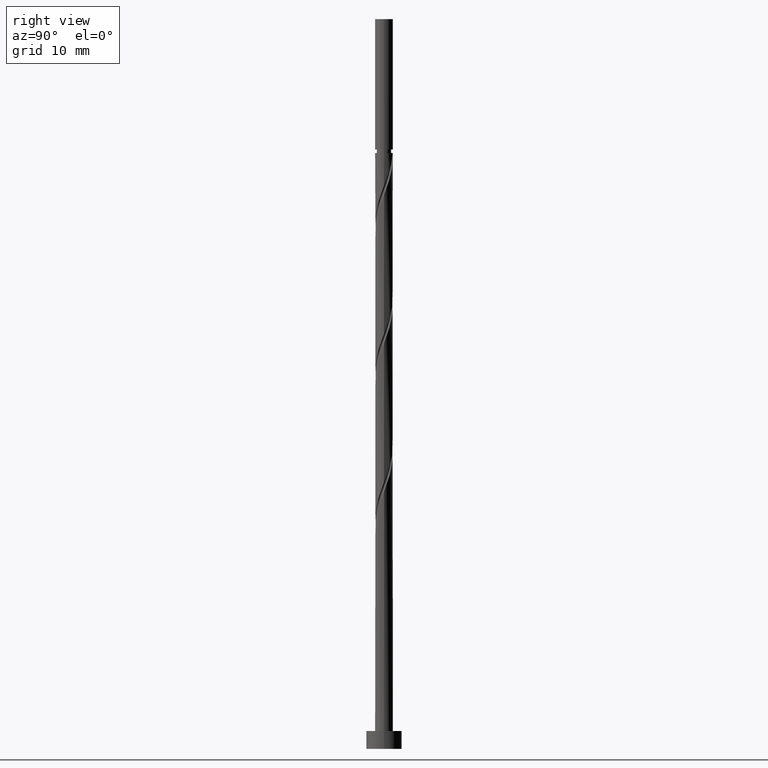
[diagram: clean part render]
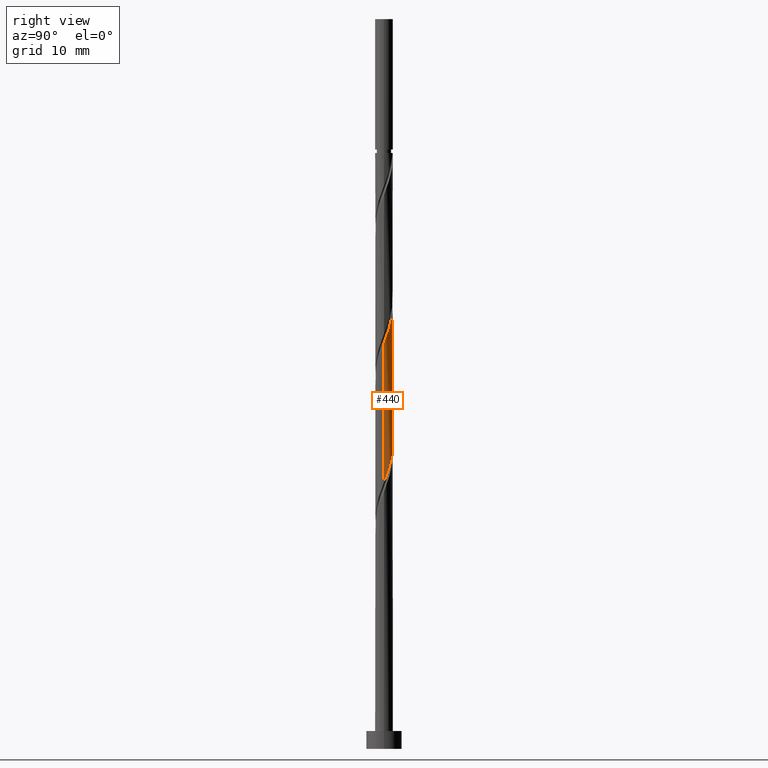
[diagram: same view with one face highlighted and labeled with its STEP entity id]
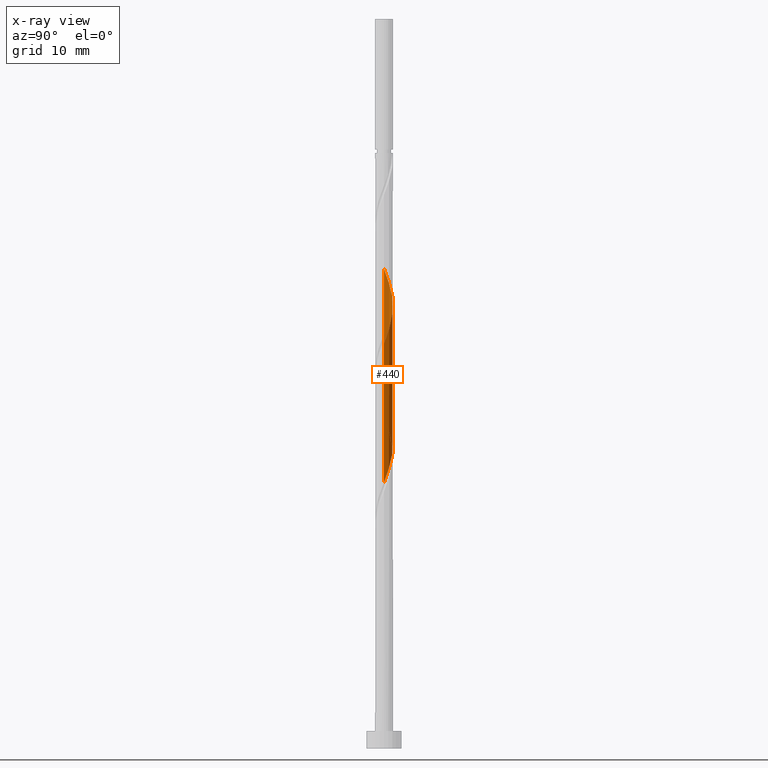
[diagram: x-ray of the same camera — body ghosted, the highlighted face saturated]
A machine part, right view. The second image highlights one B-rep face of the part: STEP entity #440.
The next image is the same camera in x-ray: the body ghosted, the highlighted face saturated — about 0% of this face is hidden behind the body in this view.
In plain terms, the highlighted cylindrical surface (edge-blend (fillet) strip) has radius 1 mm, axis along (-0, -0, -1).
Its self-contained STEP definition (entity closure, byte-faithful):
#9 = CARTESIAN_POINT ( 'NONE',  ( 0.4774909380590708907, 0.8786366735297767017, 48.43551867522781862 ) ) ;
#12 = LINE ( 'NONE', #815, #614 ) ;
#30 = CARTESIAN_POINT ( 'NONE',  ( -0.9951180796480328938, 0.2020673444260054352, 37.78737052707965205 ) ) ;
#112 = CARTESIAN_POINT ( 'NONE',  ( -0.1481832699744068949, 0.9889599175394803154, 34.54662978633891157 ) ) ;
#129 = CARTESIAN_POINT ( 'NONE',  ( -1.000000000000001332, 1.281016381396113920E-15, 53.92318230542422697 ) ) ;
#133 =( BOUNDED_CURVE ( )  B_SPLINE_CURVE ( 2, ( #1263, #1063, #1166, #30, #1487, #936, #470, #1159, #1402, #929, #112, #1271, #455, #795, #358, #252, #708, #1183, #1439, #510, #849 ),
 .UNSPECIFIED., .F., .T. ) 
 B_SPLINE_CURVE_WITH_KNOTS ( ( 3, 2, 2, 2, 2, 2, 2, 2, 2, 2, 3 ),
 ( 0.6795248053855654780, 0.6805555555555555802, 0.6944444444444444198, 0.7083333333333333703, 0.7222222222222222099, 0.7361111111111111605, 0.7500000000000000000, 0.7638888888888888395, 0.7777777777777777901, 0.7916666666666666297, 0.8045248053855292847 ),
 .UNSPECIFIED. ) 
 CURVE ( )  GEOMETRIC_REPRESENTATION_ITEM ( )  RATIONAL_B_SPLINE_CURVE ( ( 0.9071930855141923100, 0.9080659294510144974, 0.9090909090909183865, 0.8952797754656529605, 0.9090909090909183865, 0.8952797754656529605, 0.9090909090909183865, 0.8952797754656529605, 0.9090909090909183865, 0.8952797754656529605, 0.9090909090909183865, 0.8952797754656529605, 0.9090909090909183865, 0.8952797754656529605, 0.9090909090909183865, 0.8952797754656529605, 0.9090909090909183865, 0.8952797754656529605, 0.9090909090909183865, 0.8963047551055928208, 0.9071930855141310257 ) ) 
 REPRESENTATION_ITEM ( '' )  );
#134 = ORIENTED_EDGE ( 'NONE', *, *, #1366, .F. ) ;
#141 = EDGE_LOOP ( 'NONE', ( #1131, #1261, #134, #471 ) ) ;
#175 = VERTEX_POINT ( 'NONE', #1453 ) ;
#218 = CARTESIAN_POINT ( 'NONE',  ( 0.3225635862758363670, 0.9628312089533850315, 48.89848163819074500 ) ) ;
#226 = CARTESIAN_POINT ( 'NONE',  ( -0.02619704632702204994, 1.015088626125574267, 49.82440756411667593 ) ) ;
#229 = CYLINDRICAL_SURFACE ( 'NONE', #589, 1.000000000000000000 ) ;
#247 = CARTESIAN_POINT ( 'NONE',  ( -0.6725544933721968599, 0.7607638645273803180, 51.67625941596853778 ) ) ;
#252 = CARTESIAN_POINT ( 'NONE',  ( 0.6725544933721975260, 0.7607638645273798739, 32.23181497152408781 ) ) ;
#277 = VERTEX_POINT ( 'NONE', #383 ) ;
#330 = CARTESIAN_POINT ( 'NONE',  ( -0.8921910604809025758, 0.4848570054394682471, 52.60218534189446871 ) ) ;
#337 = DIRECTION ( 'NONE',  ( -0.000000000000000000, -0.000000000000000000, -1.000000000000000000 ) ) ;
#351 = CARTESIAN_POINT ( 'NONE',  ( -0.3717979285156143288, 0.9449113738744308044, 50.75033349004261396 ) ) ;
#358 = CARTESIAN_POINT ( 'NONE',  ( 0.5221762109439063160, 0.8528376192009050616, 32.69477793448705683 ) ) ;
#383 = CARTESIAN_POINT ( 'NONE',  ( 1.000000000000001554, -1.187647840478029667E-15, 45.58984897209090548 ) ) ;
#423 = CARTESIAN_POINT ( 'NONE',  ( -1.000000000000001554, 9.030418540514747156E-13, 38.31822541539935401 ) ) ;
#440 = ADVANCED_FACE ( 'NONE', ( #481 ), #229, .T. ) ;
#454 = DIRECTION ( 'NONE',  ( -0.000000000000000000, -0.000000000000000000, -1.000000000000000000 ) ) ;
#455 = CARTESIAN_POINT ( 'NONE',  ( 0.1989974874213185363, 0.9800000000000027578, 33.62070386041298775 ) ) ;
#461 = CARTESIAN_POINT ( 'NONE',  ( -0.9482036394194113260, 0.3176631206038655342, 53.06514830485743062 ) ) ;
#470 = CARTESIAN_POINT ( 'NONE',  ( -0.7492061519980932616, 0.6623368793961373902, 36.39848163819075211 ) ) ;
#471 = ORIENTED_EDGE ( 'NONE', *, *, #1298, .F. ) ;
#478 = CARTESIAN_POINT ( 'NONE',  ( 0.9951180796480328938, 0.2020673444260051854, 46.12070386041298065 ) ) ;
#481 = FACE_OUTER_BOUND ( 'NONE', #141, .T. ) ;
#488 = CARTESIAN_POINT ( 'NONE',  ( 0.9996671490029762630, 0.02579905432887138680, 45.65774089745001874 ) ) ;
#510 = CARTESIAN_POINT ( 'NONE',  ( 1.000000000000001332, 0.1630543718204597592, 30.41481159443402404 ) ) ;
#577 = CARTESIAN_POINT ( 'NONE',  ( 1.000000000000001554, -1.187647840478029667E-15, 45.58984897209090548 ) ) ;
#589 = AXIS2_PLACEMENT_3D ( 'NONE', #1175, #337, #1160 ) ;
#614 = VECTOR ( 'NONE', #1038, 1000.000000000000000 ) ;
#639 = VERTEX_POINT ( 'NONE', #423 ) ;
#655 = EDGE_CURVE ( 'NONE', #277, #859, #1123, .T. ) ;
#675 = CARTESIAN_POINT ( 'NONE',  ( 0.7492061519980929285, 0.6623368793961375012, 47.50959274930188059 ) ) ;
#700 = CARTESIAN_POINT ( 'NONE',  ( 1.000000000000001554, 0.01290167433201536845, 45.62386634602325586 ) ) ;
#708 = CARTESIAN_POINT ( 'NONE',  ( 0.7823727769265501619, 0.6228104349834240328, 31.76885200856112945 ) ) ;
#795 = CARTESIAN_POINT ( 'NONE',  ( 0.3717979285156144398, 0.9449113738744308044, 33.15774089745001874 ) ) ;
#815 = CARTESIAN_POINT ( 'NONE',  ( -1.000000000000000000, 0.000000000000000000, 82.00000000000000000 ) ) ;
#822 = CARTESIAN_POINT ( 'NONE',  ( -0.7823727769265499399, 0.6228104349834241438, 52.13922237893152101 ) ) ;
#849 = CARTESIAN_POINT ( 'NONE',  ( 1.000000000000001776, 7.096009109774468484E-16, 29.98489208206839507 ) ) ;
#859 = VERTEX_POINT ( 'NONE', #1037 ) ;
#919 = CARTESIAN_POINT ( 'NONE',  ( -1.000000000000000222, 0.1630543718204632009, 53.49326279305860510 ) ) ;
#929 = CARTESIAN_POINT ( 'NONE',  ( -0.3225635862758358119, 0.9628312089533854756, 35.00959274930186638 ) ) ;
#936 = CARTESIAN_POINT ( 'NONE',  ( -0.8659940141538805536, 0.5302316206861061865, 36.86144460115370691 ) ) ;
#1037 = CARTESIAN_POINT ( 'NONE',  ( 1.000000000000001776, 7.096009109774469470E-16, 29.98489208206839507 ) ) ;
#1038 = DIRECTION ( 'NONE',  ( -0.000000000000000000, -0.000000000000000000, -1.000000000000000000 ) ) ;
#1045 = CARTESIAN_POINT ( 'NONE',  ( 0.9305560469009569458, 0.3661494825560553945, 46.58366682337594966 ) ) ;
#1063 = CARTESIAN_POINT ( 'NONE',  ( -0.9999999999999900080, 0.01290167433247088082, 38.28420804146819023 ) ) ;
#1123 = LINE ( 'NONE', #1132, #1275 ) ;
#1131 = ORIENTED_EDGE ( 'NONE', *, *, #1315, .F. ) ;
#1132 = CARTESIAN_POINT ( 'NONE',  ( 1.000000000000000000, 1.224646799147353207E-16, 82.00000000000000000 ) ) ;
#1149 = CARTESIAN_POINT ( 'NONE',  ( -0.5221762109439057609, 0.8528376192009056167, 51.21329645300558298 ) ) ;
#1159 = CARTESIAN_POINT ( 'NONE',  ( -0.6324182898423054144, 0.7944421381061683718, 35.93551867522780441 ) ) ;
#1160 = DIRECTION ( 'NONE',  ( -1.000000000000000000, 0.000000000000000000, 0.000000000000000000 ) ) ;
#1166 = CARTESIAN_POINT ( 'NONE',  ( -0.9996671490029767071, 0.02579905432887138680, 38.25033349004262817 ) ) ;
#1173 = CARTESIAN_POINT ( 'NONE',  ( 0.8659940141538808867, 0.5302316206861056314, 47.04662978633890447 ) ) ;
#1175 = CARTESIAN_POINT ( 'NONE',  ( 0.000000000000000000, 0.000000000000000000, 82.00000000000000000 ) ) ;
#1183 = CARTESIAN_POINT ( 'NONE',  ( 0.8921910604809030199, 0.4848570054394682471, 31.30588904559816044 ) ) ;
#1261 = ORIENTED_EDGE ( 'NONE', *, *, #655, .T. ) ;
#1263 = CARTESIAN_POINT ( 'NONE',  ( -1.000000000000001554, 9.030418540514747156E-13, 38.31822541539936111 ) ) ;
#1271 = CARTESIAN_POINT ( 'NONE',  ( 0.02619704632702208116, 1.015088626125574711, 34.08366682337594256 ) ) ;
#1275 = VECTOR ( 'NONE', #454, 1000.000000000000000 ) ;
#1285 = CARTESIAN_POINT ( 'NONE',  ( 0.6324182898423054144, 0.7944421381061682608, 47.97255571226483539 ) ) ;
#1298 = EDGE_CURVE ( 'NONE', #175, #639, #12, .T. ) ;
#1315 = EDGE_CURVE ( 'NONE', #277, #175, #1477, .T. ) ;
#1366 = EDGE_CURVE ( 'NONE', #639, #859, #133, .T. ) ;
#1382 = CARTESIAN_POINT ( 'NONE',  ( 0.1481832699744076165, 0.9889599175394798714, 49.36144460115374244 ) ) ;
#1397 = CARTESIAN_POINT ( 'NONE',  ( -0.1989974874213180367, 0.9800000000000029798, 50.28737052707965915 ) ) ;
#1402 = CARTESIAN_POINT ( 'NONE',  ( -0.4774909380590706687, 0.8786366735297770347, 35.47255571226483539 ) ) ;
#1439 = CARTESIAN_POINT ( 'NONE',  ( 0.9482036394194113260, 0.3176631206038655342, 30.84292608263520563 ) ) ;
#1453 = CARTESIAN_POINT ( 'NONE',  ( -1.000000000000001332, 1.281016381396113920E-15, 53.92318230542422697 ) ) ;
#1477 =( BOUNDED_CURVE ( )  B_SPLINE_CURVE ( 2, ( #577, #700, #488, #478, #1045, #1173, #675, #1285, #9, #218, #1382, #226, #1397, #351, #1149, #247, #822, #330, #461, #919, #129 ),
 .UNSPECIFIED., .F., .T. ) 
 B_SPLINE_CURVE_WITH_KNOTS ( ( 3, 2, 2, 2, 2, 2, 2, 2, 2, 2, 3 ),
 ( 0.4295248053855291182, 0.4305555555555555802, 0.4444444444444444198, 0.4583333333333333703, 0.4722222222222222099, 0.4861111111111111605, 0.5000000000000000000, 0.5138888888888888395, 0.5277777777777777901, 0.5416666666666667407, 0.5545248053855290626 ),
 .UNSPECIFIED. ) 
 CURVE ( )  GEOMETRIC_REPRESENTATION_ITEM ( )  RATIONAL_B_SPLINE_CURVE ( ( 0.9071930855141405736, 0.9080659294509881851, 0.9090909090909282675, 0.8952797754656627305, 0.9090909090909282675, 0.8952797754656627305, 0.9090909090909282675, 0.8952797754656627305, 0.9090909090909282675, 0.8952797754656627305, 0.9090909090909282675, 0.8952797754656627305, 0.9090909090909282675, 0.8952797754656627305, 0.9090909090909282675, 0.8952797754656627305, 0.9090909090909282675, 0.8952797754656627305, 0.9090909090909282675, 0.8963047551056028128, 0.9071930855141405736 ) ) 
 REPRESENTATION_ITEM ( '' )  );
#1487 = CARTESIAN_POINT ( 'NONE',  ( -0.9305560469009568347, 0.3661494825560558386, 37.32440756411668303 ) ) ;